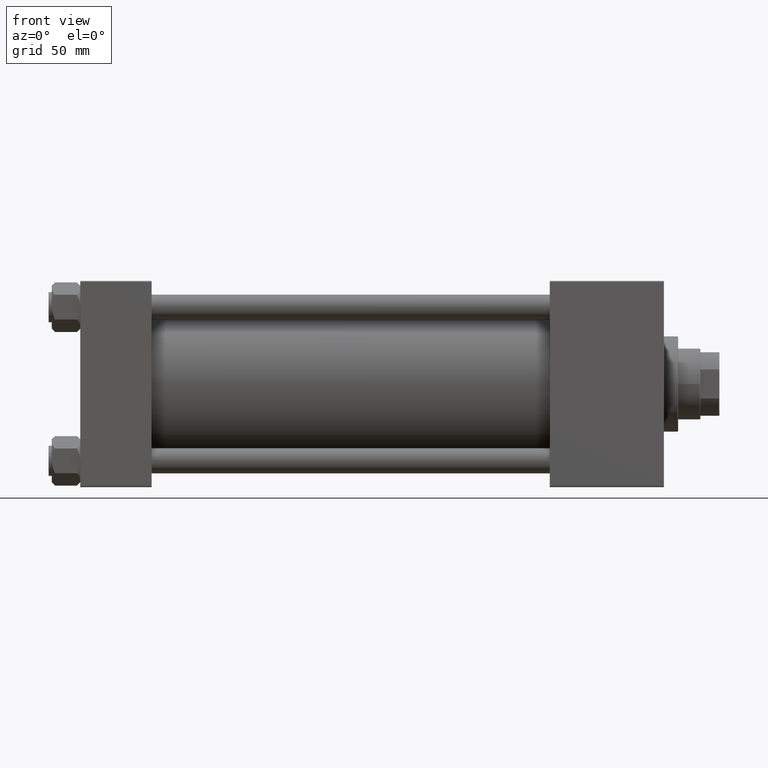
[diagram: clean part render]
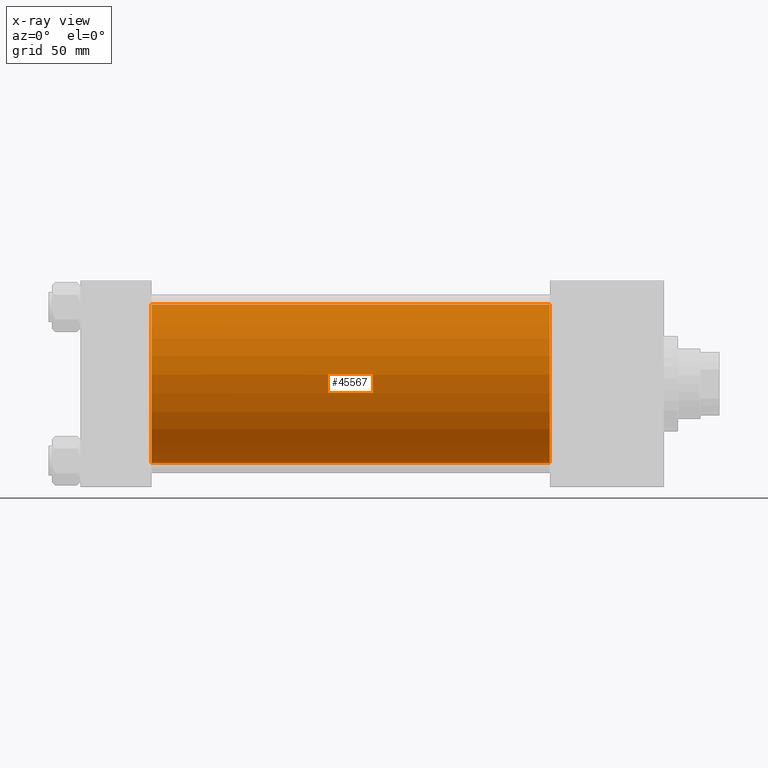
[diagram: x-ray — body ghosted, one internal face saturated and labeled with its STEP entity id]
A machine part, front view, then the same camera in x-ray: the body is ghosted and one INTERNAL B-rep face — a face not visible from any outside direction — is saturated and labeled: STEP entity #45567.
In plain terms, the highlighted cylindrical surface (partial cylindrical patch) has radius 50 mm, axis along (-1, -0, -0).
Its self-contained STEP definition (entity closure, byte-faithful):
#1272 = EDGE_LOOP ( 'NONE', ( #9724, #35325, #4836, #37900 ) ) ;
#2137 = CARTESIAN_POINT ( 'NONE',  ( 296.0000000000000000, -2.602085213965210642E-15, 0.000000000000000000 ) ) ;
#2301 = DIRECTION ( 'NONE',  ( 0.000000000000000000, 0.000000000000000000, -1.000000000000000000 ) ) ;
#2760 = LINE ( 'NONE', #42431, #32008 ) ;
#3365 = EDGE_CURVE ( 'NONE', #14241, #32411, #47920, .T. ) ;
#4836 = ORIENTED_EDGE ( 'NONE', *, *, #41733, .F. ) ;
#6042 = AXIS2_PLACEMENT_3D ( 'NONE', #9096, #24465, #44441 ) ;
#9096 = CARTESIAN_POINT ( 'NONE',  ( 296.0000000000000000, -2.602085213965210642E-15, 0.000000000000000000 ) ) ;
#9571 = FACE_OUTER_BOUND ( 'NONE', #1272, .T. ) ;
#9724 = ORIENTED_EDGE ( 'NONE', *, *, #16683, .T. ) ;
#11974 = VERTEX_POINT ( 'NONE', #48873 ) ;
#12908 = DIRECTION ( 'NONE',  ( 0.000000000000000000, 0.000000000000000000, 1.000000000000000000 ) ) ;
#13847 = CARTESIAN_POINT ( 'NONE',  ( 296.0000000000000000, -2.602085213965210642E-15, 50.00000000000000000 ) ) ;
#14241 = VERTEX_POINT ( 'NONE', #31623 ) ;
#14769 = AXIS2_PLACEMENT_3D ( 'NONE', #44820, #36898, #2301 ) ;
#16683 = EDGE_CURVE ( 'NONE', #49188, #14241, #42020, .T. ) ;
#22479 = DIRECTION ( 'NONE',  ( -1.000000000000000000, -0.000000000000000000, -0.000000000000000000 ) ) ;
#24465 = DIRECTION ( 'NONE',  ( 1.000000000000000000, 0.000000000000000000, 0.000000000000000000 ) ) ;
#27034 = CIRCLE ( 'NONE', #14769, 50.00000000000000000 ) ;
#30335 = AXIS2_PLACEMENT_3D ( 'NONE', #2137, #36726, #12908 ) ;
#31304 = VECTOR ( 'NONE', #43550, 1000.000000000000000 ) ;
#31623 = CARTESIAN_POINT ( 'NONE',  ( 296.0000000000000000, 3.521148781771555838E-15, -50.00000000000000000 ) ) ;
#32008 = VECTOR ( 'NONE', #22479, 1000.000000000000000 ) ;
#32411 = VERTEX_POINT ( 'NONE', #40781 ) ;
#35325 = ORIENTED_EDGE ( 'NONE', *, *, #3365, .T. ) ;
#36726 = DIRECTION ( 'NONE',  ( -1.000000000000000000, -0.000000000000000000, -0.000000000000000000 ) ) ;
#36898 = DIRECTION ( 'NONE',  ( 1.000000000000000000, 0.000000000000000000, 0.000000000000000000 ) ) ;
#37900 = ORIENTED_EDGE ( 'NONE', *, *, #47286, .F. ) ;
#40566 = CYLINDRICAL_SURFACE ( 'NONE', #30335, 50.00000000000000000 ) ;
#40781 = CARTESIAN_POINT ( 'NONE',  ( 45.00000000000000000, 3.521148781771555838E-15, -50.00000000000000000 ) ) ;
#41733 = EDGE_CURVE ( 'NONE', #11974, #32411, #27034, .T. ) ;
#42020 = CIRCLE ( 'NONE', #6042, 50.00000000000000000 ) ;
#42431 = CARTESIAN_POINT ( 'NONE',  ( 296.0000000000000000, -2.602085213965210642E-15, 50.00000000000000000 ) ) ;
#43550 = DIRECTION ( 'NONE',  ( -1.000000000000000000, -0.000000000000000000, -0.000000000000000000 ) ) ;
#44063 = CARTESIAN_POINT ( 'NONE',  ( 296.0000000000000000, 3.521148781771555838E-15, -50.00000000000000000 ) ) ;
#44441 = DIRECTION ( 'NONE',  ( 0.000000000000000000, 0.000000000000000000, -1.000000000000000000 ) ) ;
#44820 = CARTESIAN_POINT ( 'NONE',  ( 45.00000000000000000, -2.602085213965210642E-15, 0.000000000000000000 ) ) ;
#45567 = ADVANCED_FACE ( 'NONE', ( #9571 ), #40566, .F. ) ;
#47286 = EDGE_CURVE ( 'NONE', #49188, #11974, #2760, .T. ) ;
#47920 = LINE ( 'NONE', #44063, #31304 ) ;
#48873 = CARTESIAN_POINT ( 'NONE',  ( 45.00000000000000000, -2.602085213965210642E-15, 50.00000000000000000 ) ) ;
#49188 = VERTEX_POINT ( 'NONE', #13847 ) ;